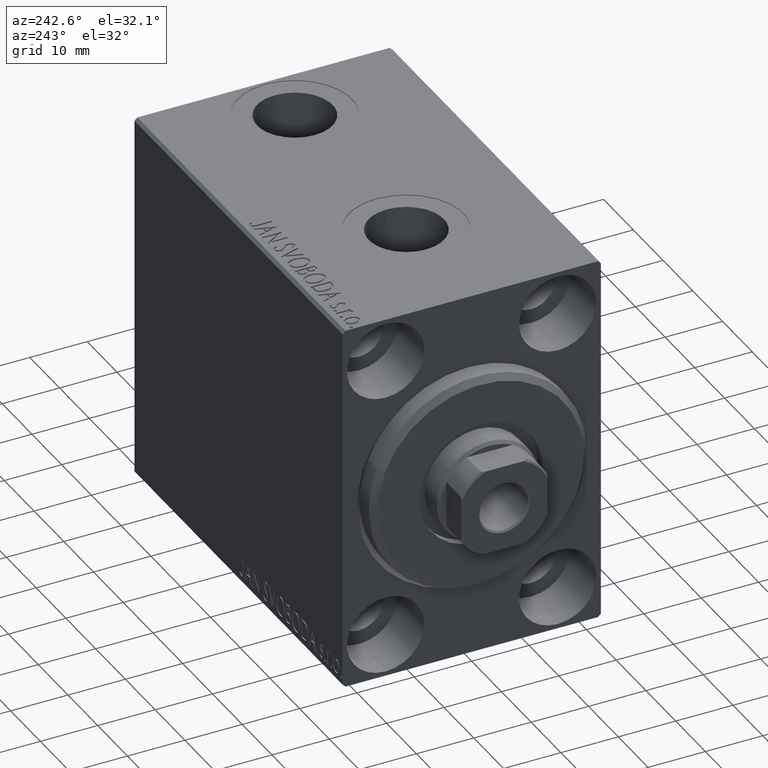
[diagram: clean part render]
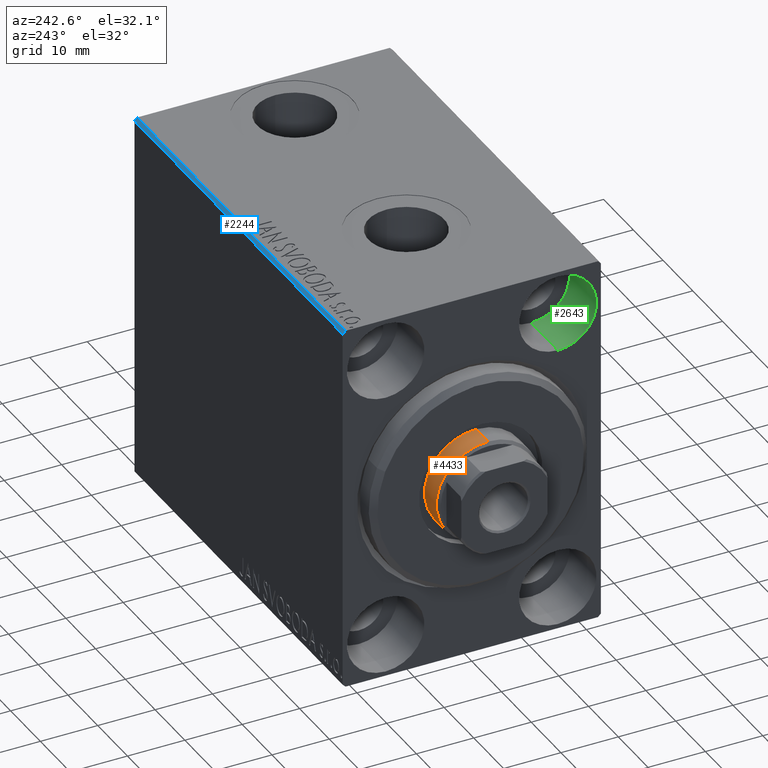
[diagram: same view with three faces highlighted in distinct colors, each labeled with its STEP entity id]
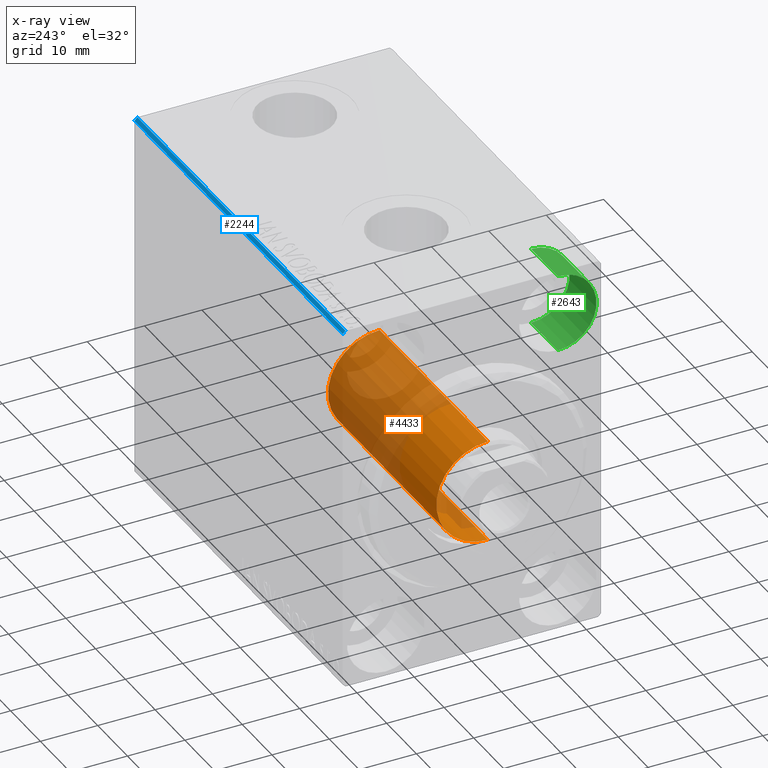
[diagram: x-ray of the same camera — body ghosted, the three highlighted faces saturated]
A machine part, auxiliary view with three faces highlighted in distinct colors.
The next image is the same camera in x-ray (body ghosted, the three faces saturated) — at least one of them is partly hidden behind the body in this view.
Their STEP definitions:

[orange] entity #4433 — the highlighted cylindrical surface (partial cylindrical patch) has radius 9 mm, axis along (1, -0, -0).
#579 = AXIS2_PLACEMENT_3D ( 'NONE', #40133, #37236, #16772 ) ;
#1447 = DIRECTION ( 'NONE',  ( -0.000000000000000000, -0.000000000000000000, -1.000000000000000000 ) ) ;
#2792 = AXIS2_PLACEMENT_3D ( 'NONE', #8385, #37054, #36830 ) ;
#4277 = VERTEX_POINT ( 'NONE', #5452 ) ;
#4320 = DIRECTION ( 'NONE',  ( -0.000000000000000000, -0.000000000000000000, -1.000000000000000000 ) ) ;
#4433 = ADVANCED_FACE ( 'NONE', ( #34566 ), #24128, .T. ) ;
#5452 = CARTESIAN_POINT ( 'NONE',  ( 9.000000000000000000, 1.102182119232617714E-15, 69.50000000000000000 ) ) ;
#5519 = EDGE_CURVE ( 'NONE', #25215, #4277, #14072, .T. ) ;
#7520 = ORIENTED_EDGE ( 'NONE', *, *, #5519, .T. ) ;
#8385 = CARTESIAN_POINT ( 'NONE',  ( 0.000000000000000000, 0.000000000000000000, 33.00000000000000000 ) ) ;
#10652 = VECTOR ( 'NONE', #1447, 1000.000000000000000 ) ;
#11888 = LINE ( 'NONE', #35698, #10652 ) ;
#14072 = CIRCLE ( 'NONE', #579, 9.000000000000000000 ) ;
#15678 = ORIENTED_EDGE ( 'NONE', *, *, #30986, .T. ) ;
#16772 = DIRECTION ( 'NONE',  ( 1.000000000000000000, 0.000000000000000000, 0.000000000000000000 ) ) ;
#18343 = CARTESIAN_POINT ( 'NONE',  ( 0.000000000000000000, 0.000000000000000000, 70.00000000000000000 ) ) ;
#19161 = CIRCLE ( 'NONE', #2792, 9.000000000000000000 ) ;
#20454 = LINE ( 'NONE', #24009, #24951 ) ;
#21179 = EDGE_LOOP ( 'NONE', ( #7520, #15678, #42403, #28093 ) ) ;
#21756 = CARTESIAN_POINT ( 'NONE',  ( 9.000000000000000000, 1.102182119232617714E-15, 33.00000000000000000 ) ) ;
#21981 = VERTEX_POINT ( 'NONE', #21756 ) ;
#23011 = VERTEX_POINT ( 'NONE', #31725 ) ;
#24009 = CARTESIAN_POINT ( 'NONE',  ( -9.000000000000000000, 0.000000000000000000, 70.00000000000000000 ) ) ;
#24128 = CYLINDRICAL_SURFACE ( 'NONE', #31822, 9.000000000000000000 ) ;
#24951 = VECTOR ( 'NONE', #37580, 1000.000000000000000 ) ;
#25215 = VERTEX_POINT ( 'NONE', #37706 ) ;
#28093 = ORIENTED_EDGE ( 'NONE', *, *, #34462, .F. ) ;
#30730 = EDGE_CURVE ( 'NONE', #21981, #23011, #19161, .T. ) ;
#30986 = EDGE_CURVE ( 'NONE', #4277, #21981, #11888, .T. ) ;
#31725 = CARTESIAN_POINT ( 'NONE',  ( -9.000000000000000000, 0.000000000000000000, 33.00000000000000000 ) ) ;
#31822 = AXIS2_PLACEMENT_3D ( 'NONE', #18343, #4320, #35234 ) ;
#34462 = EDGE_CURVE ( 'NONE', #25215, #23011, #20454, .T. ) ;
#34566 = FACE_OUTER_BOUND ( 'NONE', #21179, .T. ) ;
#35234 = DIRECTION ( 'NONE',  ( -1.000000000000000000, 0.000000000000000000, 0.000000000000000000 ) ) ;
#35698 = CARTESIAN_POINT ( 'NONE',  ( 9.000000000000000000, 1.102182119232617714E-15, 70.00000000000000000 ) ) ;
#36830 = DIRECTION ( 'NONE',  ( 1.000000000000000000, 0.000000000000000000, 0.000000000000000000 ) ) ;
#37054 = DIRECTION ( 'NONE',  ( 0.000000000000000000, 0.000000000000000000, 1.000000000000000000 ) ) ;
#37236 = DIRECTION ( 'NONE',  ( 0.000000000000000000, 0.000000000000000000, -1.000000000000000000 ) ) ;
#37580 = DIRECTION ( 'NONE',  ( -0.000000000000000000, -0.000000000000000000, -1.000000000000000000 ) ) ;
#37706 = CARTESIAN_POINT ( 'NONE',  ( -9.000000000000000000, 0.000000000000000000, 69.50000000000000000 ) ) ;
#40133 = CARTESIAN_POINT ( 'NONE',  ( 0.000000000000000000, 0.000000000000000000, 69.50000000000000000 ) ) ;
#42403 = ORIENTED_EDGE ( 'NONE', *, *, #30730, .T. ) ;

[blue] entity #2244 — the highlighted planar face has unit normal (-0, -0.7071, -0.7071).
#1155 = CARTESIAN_POINT ( 'NONE',  ( 70.00000000000000000, 21.99999999999999289, 32.50000000000000000 ) ) ;
#2244 = ADVANCED_FACE ( 'NONE', ( #24207 ), #21546, .F. ) ;
#2250 = CARTESIAN_POINT ( 'NONE',  ( 0.000000000000000000, 21.99999999999999289, 32.50000000000000000 ) ) ;
#3942 = DIRECTION ( 'NONE',  ( -0.000000000000000000, -0.7071067811865524577, -0.7071067811865425767 ) ) ;
#6916 = ORIENTED_EDGE ( 'NONE', *, *, #17314, .F. ) ;
#7740 = CARTESIAN_POINT ( 'NONE',  ( 70.00000000000000000, 21.99999999999999289, 32.50000000000000000 ) ) ;
#8010 = VECTOR ( 'NONE', #26981, 999.9999999999998863 ) ;
#8055 = CARTESIAN_POINT ( 'NONE',  ( 70.00000000000000000, 22.49999999999999289, 31.99999999999999289 ) ) ;
#10316 = CARTESIAN_POINT ( 'NONE',  ( 0.000000000000000000, 22.49999999999999289, 31.99999999999999289 ) ) ;
#10399 = VECTOR ( 'NONE', #35411, 1000.000000000000000 ) ;
#11818 = LINE ( 'NONE', #8055, #10399 ) ;
#12226 = ORIENTED_EDGE ( 'NONE', *, *, #43966, .F. ) ;
#15168 = LINE ( 'NONE', #1155, #16111 ) ;
#16111 = VECTOR ( 'NONE', #28734, 1000.000000000000000 ) ;
#16842 = DIRECTION ( 'NONE',  ( -0.000000000000000000, -0.7071067811865425767, 0.7071067811865525687 ) ) ;
#17202 = CARTESIAN_POINT ( 'NONE',  ( 0.000000000000000000, 21.99999999999999289, 32.50000000000000000 ) ) ;
#17273 = EDGE_CURVE ( 'NONE', #35866, #22227, #11818, .T. ) ;
#17314 = EDGE_CURVE ( 'NONE', #40811, #25553, #15168, .T. ) ;
#21546 = PLANE ( 'NONE',  #42422 ) ;
#22227 = VERTEX_POINT ( 'NONE', #42825 ) ;
#23981 = DIRECTION ( 'NONE',  ( -1.000000000000000000, 0.000000000000000000, 0.000000000000000000 ) ) ;
#24207 = FACE_OUTER_BOUND ( 'NONE', #33131, .T. ) ;
#24497 = CARTESIAN_POINT ( 'NONE',  ( 70.00000000000000000, 21.99999999999999289, 32.50000000000000000 ) ) ;
#25553 = VERTEX_POINT ( 'NONE', #2250 ) ;
#26981 = DIRECTION ( 'NONE',  ( -0.000000000000000000, 0.7071067811865425767, -0.7071067811865525687 ) ) ;
#28734 = DIRECTION ( 'NONE',  ( -1.000000000000000000, 0.000000000000000000, 0.000000000000000000 ) ) ;
#29383 = EDGE_CURVE ( 'NONE', #22227, #40811, #36428, .T. ) ;
#30182 = CARTESIAN_POINT ( 'NONE',  ( 70.00000000000000000, 27.25000000000014921, 27.24999999999976907 ) ) ;
#33131 = EDGE_LOOP ( 'NONE', ( #37505, #33229, #12226, #6916 ) ) ;
#33229 = ORIENTED_EDGE ( 'NONE', *, *, #17273, .F. ) ;
#35411 = DIRECTION ( 'NONE',  ( 1.000000000000000000, 0.000000000000000000, 0.000000000000000000 ) ) ;
#35866 = VERTEX_POINT ( 'NONE', #10316 ) ;
#36428 = LINE ( 'NONE', #30182, #43979 ) ;
#37505 = ORIENTED_EDGE ( 'NONE', *, *, #29383, .F. ) ;
#40811 = VERTEX_POINT ( 'NONE', #24497 ) ;
#40991 = LINE ( 'NONE', #17202, #8010 ) ;
#42422 = AXIS2_PLACEMENT_3D ( 'NONE', #7740, #3942, #23981 ) ;
#42825 = CARTESIAN_POINT ( 'NONE',  ( 70.00000000000000000, 22.49999999999999289, 31.99999999999999289 ) ) ;
#43966 = EDGE_CURVE ( 'NONE', #25553, #35866, #40991, .T. ) ;
#43979 = VECTOR ( 'NONE', #16842, 999.9999999999998863 ) ;

[green] entity #2643 — the highlighted cylindrical surface (partial cylindrical patch) has radius 6.75 mm, axis along (-1, -0, -0).
#7 = CARTESIAN_POINT ( 'NONE',  ( 0.000000000000000000, -14.99999999999999645, 31.75000000000000000 ) ) ;
#2643 = ADVANCED_FACE ( 'NONE', ( #27544 ), #6421, .F. ) ;
#3014 = LINE ( 'NONE', #43715, #28407 ) ;
#3299 = CARTESIAN_POINT ( 'NONE',  ( 9.000000000000000000, -14.99999999999999645, 25.00000000000000000 ) ) ;
#5847 = ORIENTED_EDGE ( 'NONE', *, *, #38395, .F. ) ;
#6337 = DIRECTION ( 'NONE',  ( 0.000000000000000000, 0.000000000000000000, 1.000000000000000000 ) ) ;
#6421 = CYLINDRICAL_SURFACE ( 'NONE', #31041, 6.749999999999999112 ) ;
#6682 = VERTEX_POINT ( 'NONE', #7 ) ;
#7779 = CARTESIAN_POINT ( 'NONE',  ( 0.000000000000000000, -14.99999999999999645, 25.00000000000000000 ) ) ;
#8275 = VERTEX_POINT ( 'NONE', #18146 ) ;
#12121 = EDGE_CURVE ( 'NONE', #31776, #6682, #29854, .T. ) ;
#13231 = DIRECTION ( 'NONE',  ( -1.000000000000000000, -0.000000000000000000, -0.000000000000000000 ) ) ;
#17821 = AXIS2_PLACEMENT_3D ( 'NONE', #25730, #23048, #6337 ) ;
#18146 = CARTESIAN_POINT ( 'NONE',  ( 9.000000000000000000, -14.99999999999999645, 18.25000000000000355 ) ) ;
#20909 = DIRECTION ( 'NONE',  ( 0.000000000000000000, 0.000000000000000000, 1.000000000000000000 ) ) ;
#23048 = DIRECTION ( 'NONE',  ( -1.000000000000000000, 0.000000000000000000, 0.000000000000000000 ) ) ;
#23866 = VERTEX_POINT ( 'NONE', #41349 ) ;
#25730 = CARTESIAN_POINT ( 'NONE',  ( 9.000000000000000000, -14.99999999999999645, 25.00000000000000000 ) ) ;
#25908 = CARTESIAN_POINT ( 'NONE',  ( 0.000000000000000000, -14.99999999999999645, 18.25000000000000355 ) ) ;
#25959 = ORIENTED_EDGE ( 'NONE', *, *, #30059, .F. ) ;
#27544 = FACE_OUTER_BOUND ( 'NONE', #31530, .T. ) ;
#27916 = CARTESIAN_POINT ( 'NONE',  ( 9.000000000000000000, -14.99999999999999645, 31.75000000000000000 ) ) ;
#28018 = DIRECTION ( 'NONE',  ( -1.000000000000000000, 0.000000000000000000, 0.000000000000000000 ) ) ;
#28407 = VECTOR ( 'NONE', #13231, 1000.000000000000000 ) ;
#29854 = CIRCLE ( 'NONE', #39801, 6.749999999999999112 ) ;
#29989 = EDGE_CURVE ( 'NONE', #8275, #31776, #3014, .T. ) ;
#30059 = EDGE_CURVE ( 'NONE', #23866, #6682, #37481, .T. ) ;
#31041 = AXIS2_PLACEMENT_3D ( 'NONE', #3299, #43795, #33775 ) ;
#31530 = EDGE_LOOP ( 'NONE', ( #5847, #33465, #37793, #25959 ) ) ;
#31776 = VERTEX_POINT ( 'NONE', #25908 ) ;
#33465 = ORIENTED_EDGE ( 'NONE', *, *, #29989, .T. ) ;
#33775 = DIRECTION ( 'NONE',  ( 0.000000000000000000, 0.000000000000000000, 1.000000000000000000 ) ) ;
#37481 = LINE ( 'NONE', #27916, #41913 ) ;
#37695 = CIRCLE ( 'NONE', #17821, 6.749999999999999112 ) ;
#37793 = ORIENTED_EDGE ( 'NONE', *, *, #12121, .T. ) ;
#38378 = DIRECTION ( 'NONE',  ( -1.000000000000000000, -0.000000000000000000, -0.000000000000000000 ) ) ;
#38395 = EDGE_CURVE ( 'NONE', #8275, #23866, #37695, .T. ) ;
#39801 = AXIS2_PLACEMENT_3D ( 'NONE', #7779, #28018, #20909 ) ;
#41349 = CARTESIAN_POINT ( 'NONE',  ( 9.000000000000000000, -14.99999999999999645, 31.75000000000000000 ) ) ;
#41913 = VECTOR ( 'NONE', #38378, 1000.000000000000000 ) ;
#43715 = CARTESIAN_POINT ( 'NONE',  ( 9.000000000000000000, -14.99999999999999645, 18.25000000000000355 ) ) ;
#43795 = DIRECTION ( 'NONE',  ( -1.000000000000000000, -0.000000000000000000, -0.000000000000000000 ) ) ;